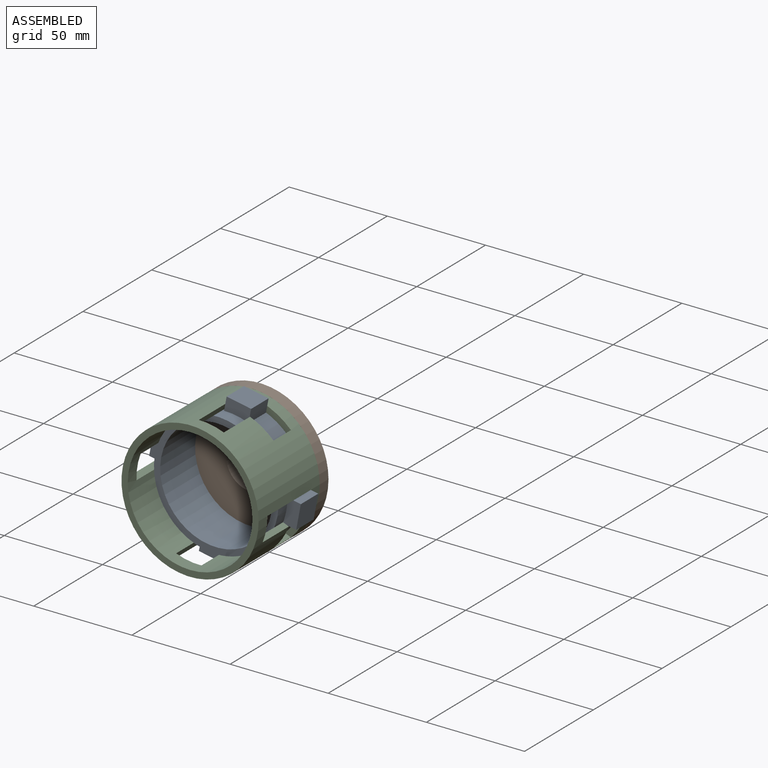
[diagram: assembled view]
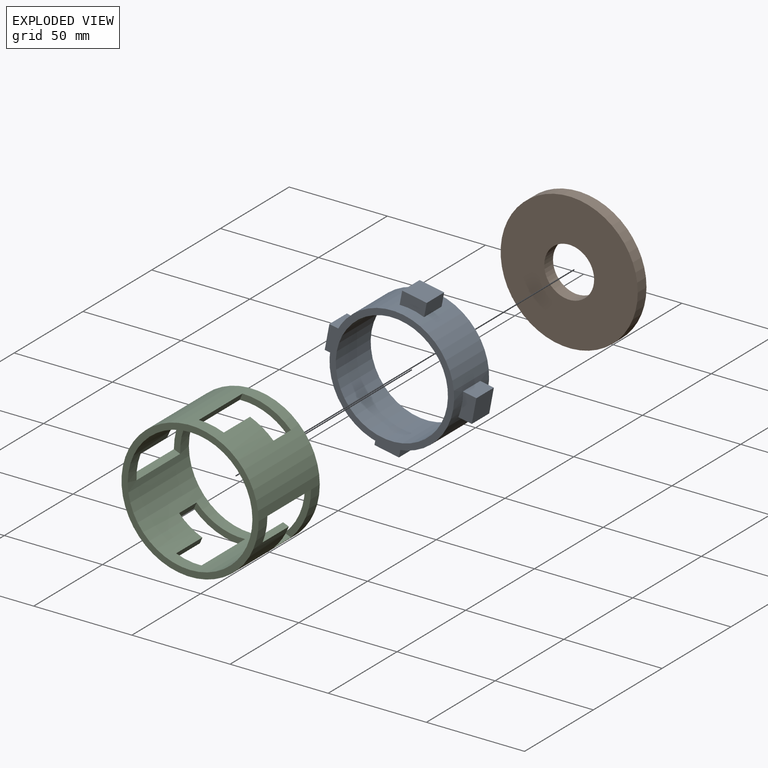
[diagram: exploded view]
GUIDED TOUR — MATED ASSEMBLY (Onshape document f2bd7fd3208cc867d8678e14, AutoMate assembly f2bd7fd3208cc867d8678e14_0d0c3bc2f371387e09c12f44_d8aabe314014a72a8f531f0d_default)

This assembly has 3 components, labeled P0..P2 below (a component is one placed occurrence of a part; the same part can appear more than once), held together by 3 mates. A mate is a constraint between two components; its type names the relative motion it leaves free:
  CYLINDRICAL — leaves both rotation about and translation along the listed axis free,
  PLANAR — leaves sliding in the plane through the listed point (normal = the listed direction) and rotation about that normal free.
Axis/direction vectors are unit vectors and 'through' points are millimeter coordinates, both in the assembly's world frame.

MATES
  1. CYLINDRICAL "Cylindrical 1": P2 <-> P1, axis (0.000, -1.000, 0.000) through (-6.29, 1.32, -3.95) mm
  2. CYLINDRICAL "Cylindrical 2": P0 <-> P2, axis (0.000, -1.000, 0.000) through (-6.29, 20.37, -3.95) mm
  3. PLANAR "Planar 1": P2 <-> P1, direction (0.000, 1.000, 0.000) through (-6.29, 45.77, -3.95) mm

ASSEMBLY ORDER
  1. P2 — the base component [order heuristic]
  2. P0 — core [order heuristic]
  3. P1 [order verified]
Order-tag legend:
  [order verified] — this step's position reverses a verified removal order: the component was checked to insert without passing through the ones already placed.
  [order heuristic] — the first 2 components form the assembly's core: parts whose collision-free extraction could not be verified, listed in mate-graph order.

Of the 3 components, 3 carry the full construction recipe — the FeatureScript program that regenerates the part's solid from scratch; the rest are supplied as boundary geometry only.
Each toured component is shown spotlighted twice — in the assembled view, then in the exploded view, where a leader line traces a displaced component back to its assembled socket (saturated green if recipe-attached, orange if geometry-only; every other component desaturated gray) — followed by its recipe or geometry summary and the mates that hold it.
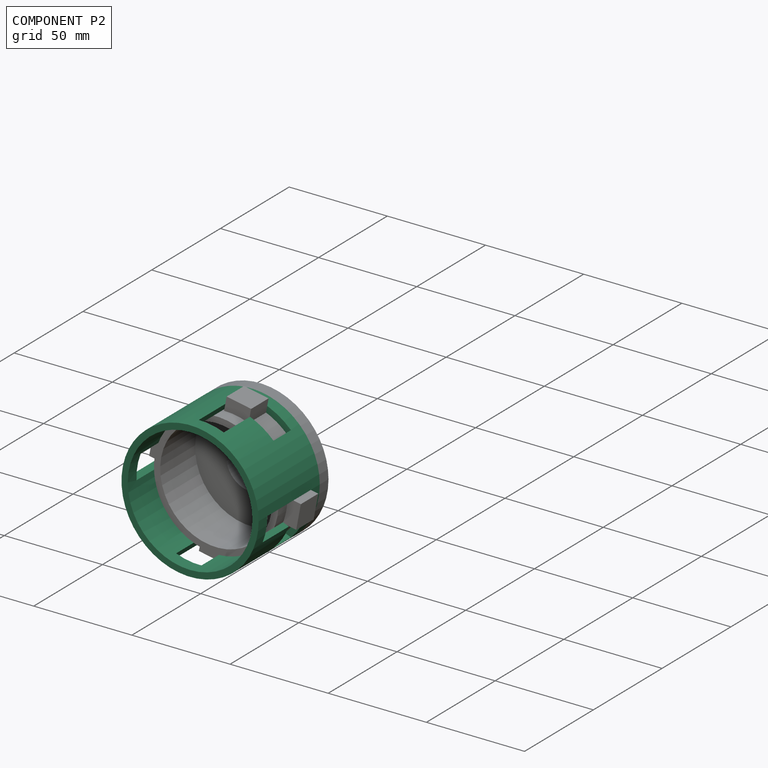
[diagram: component P2 — assembled]
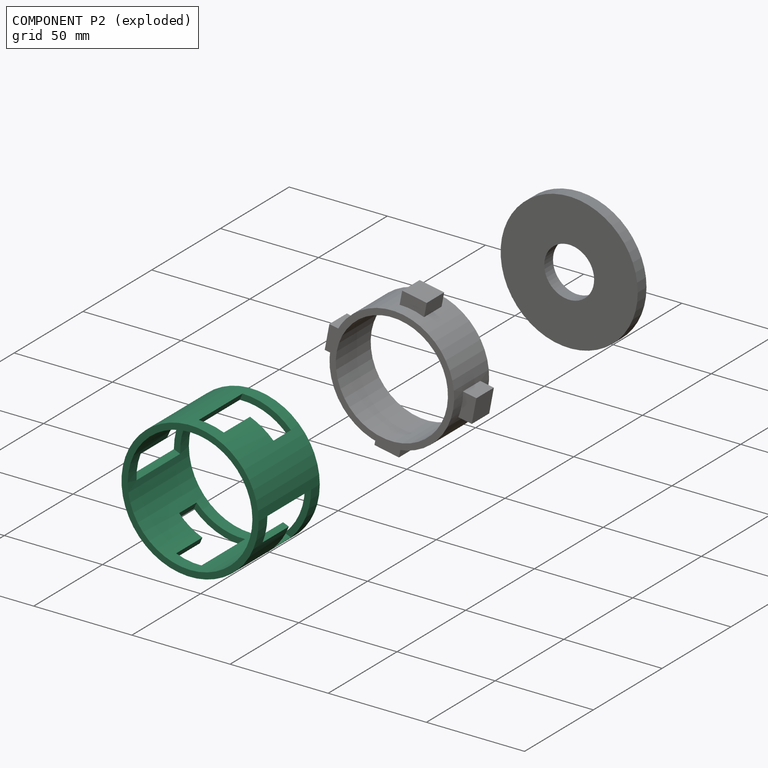
[diagram: component P2 — exploded]
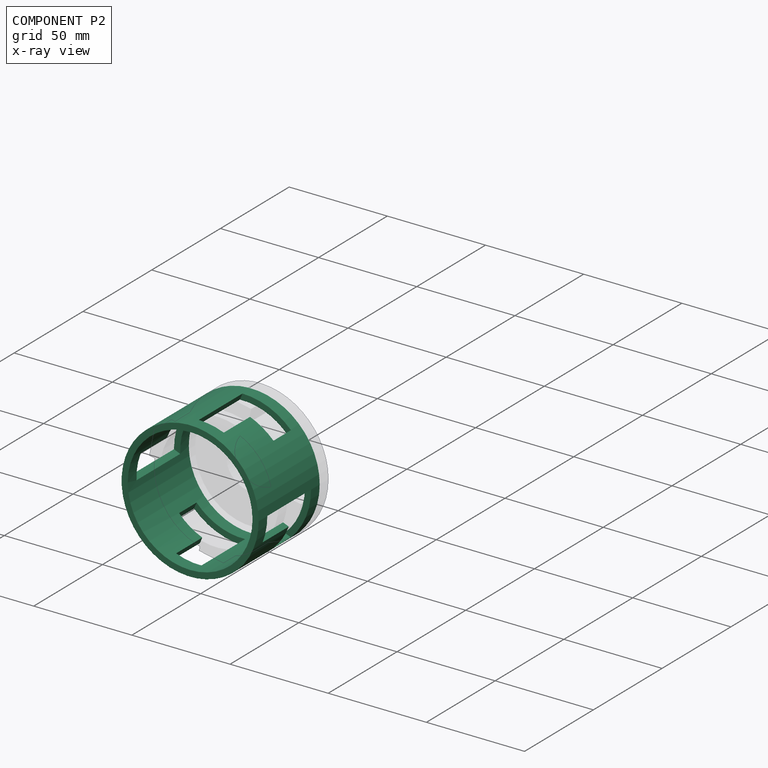
[diagram: component P2 — x-ray view]
COMPONENT P2 — recipe-attached (CADFS 00710134, mesh-verified: the recipe's output STEP matches this component's geometry to below the mesh-comparison resolution (tessellation chordal tolerance ~0.162 mm)).
Held by: CYLINDRICAL mate "Cylindrical 1" to P1; CYLINDRICAL mate "Cylindrical 2" to P0; PLANAR mate "Planar 1" to P1.
Construction recipe (FeatureScript — the CAD program that rebuilds this solid; sketch coordinates are in the units given by the * unit suffixes, e.g. mm):

FeatureScript 1521;
import(path : "onshape/std/geometry.fs", version : "1521.0");
import(path : "onshape/std/common.fs", version : "1521.0");
const mm = millimeter;
const VERTEX = EntityType.VERTEX;
const EDGE = EntityType.EDGE;
const FACE = EntityType.FACE;
const BODY = EntityType.BODY;
function v(x, y){return vector(x, y);}
function OD(order){return orderDisambiguation(order);}
function OSD(set){return originalSetDisambiguation(set);}
function TD(topology){return topologyDisambiguation(topology);}
function TDD(query){return trueDependencyDisambiguation(query);}
function sQuery(a, b, c) {return sketchEntityQuery(a, b, c);}

annotation { "Feature Type Name" : "Feature", "Feature Type Description" : "" }
export const myFeature = defineFeature(function(context is Context, id is Id, definition is map)
    precondition{}
    {
        {
            var Q0;
            Q0=qCreatedBy(makeId("Front.planeOp"),FACE);
            var sketch = newSketch(context, id + "F0", { "sketchPlane" : qUnion([Q0])});
            skCircle(sketch, "E0", {"center": v(0, 0) * mm, "radius": 31.75 * mm});
            skCircle(sketch, "E1", {"center": v(0, 0) * mm, "radius": 34.93 * mm});
            skSolve(sketch);
        }
        {
            var Q0;
            Q0=makeQuery(id+"F0.imprint","IMPRINT",FACE,{"disambiguationData":[TD([[makeQuery(id+"F0.imprint","IMPRINT",EDGE,{"derivedFrom":sQuery(id+"F0.wireOp",EDGE,"E0")}),-1.0]])]});
            extrude(context, id + "F1", {"entities" : qUnion([Q0]), "depth" : 44.45 * mm, "offsetDistance" : 25.4 * mm});
        }
        {
            var Q0;
            Q0=qCreatedBy(makeId("Top.planeOp"),FACE);
            cPlane(context, id + "F2", {"entities" : qUnion([Q0]), "cplaneType" : CPlaneType.OFFSET, "offset" : 38.1 * mm, "width" : 152.4 * mm, "height" : 152.4 * mm});
        }
        {
            var Q0;
            Q0=qCreatedBy(makeId("Front.planeOp"),FACE);
            cPlane(context, id + "F3", {"entities" : qUnion([Q0]), "cplaneType" : CPlaneType.OFFSET, "offset" : 6.35 * mm, "width" : 152.4 * mm, "height" : 152.4 * mm});
        }
        {
            var Q0;
            Q0=qCreatedBy(id+"F3.planeOp",FACE);
            var sketch = newSketch(context, id + "F4", { "sketchPlane" : qUnion([Q0])});
            skLineSegment(sketch, "E2.0", {"start": v(1.22, 37.86) * mm, "end": v(25.91, 27.63) * mm});
            skLineSegment(sketch, "E3.0", {"start": v(-2.43, 29.06) * mm, "end": v(22.27, 18.83) * mm});
            skLineSegment(sketch, "E4", {"start": v(1.22, 37.86) * mm, "end": v(-2.43, 29.06) * mm});
            skLineSegment(sketch, "E5", {"start": v(22.27, 18.83) * mm, "end": v(25.91, 27.63) * mm});
            skLineSegment(sketch, "E6.1.0", {"start": v(-18.83, 22.27) * mm, "end": v(-27.63, 25.91) * mm});
            skLineSegment(sketch, "E6.1.1", {"start": v(-37.86, 1.22) * mm, "end": v(-27.63, 25.91) * mm});
            skLineSegment(sketch, "E6.1.2", {"start": v(-37.86, 1.22) * mm, "end": v(-29.06, -2.43) * mm});
            skLineSegment(sketch, "E6.1.3", {"start": v(-29.06, -2.43) * mm, "end": v(-18.83, 22.27) * mm});
            skLineSegment(sketch, "E6.2.0", {"start": v(-22.27, -18.83) * mm, "end": v(-25.91, -27.63) * mm});
            skLineSegment(sketch, "E6.2.1", {"start": v(-1.22, -37.86) * mm, "end": v(-25.91, -27.63) * mm});
            skLineSegment(sketch, "E6.2.2", {"start": v(-1.22, -37.86) * mm, "end": v(2.43, -29.06) * mm});
            skLineSegment(sketch, "E6.2.3", {"start": v(2.43, -29.06) * mm, "end": v(-22.27, -18.83) * mm});
            skLineSegment(sketch, "E6.3.0", {"start": v(18.83, -22.27) * mm, "end": v(27.63, -25.91) * mm});
            skLineSegment(sketch, "E6.3.1", {"start": v(37.86, -1.22) * mm, "end": v(27.63, -25.91) * mm});
            skLineSegment(sketch, "E6.3.2", {"start": v(37.86, -1.22) * mm, "end": v(29.06, 2.43) * mm});
            skLineSegment(sketch, "E6.3.3", {"start": v(29.06, 2.43) * mm, "end": v(18.83, -22.27) * mm});
            skPoint(sketch, "E6.center", {"position": v(0, 0) * mm});
            skSolve(sketch);
        }
        {
            var Q0;
            Q0=makeQuery(id+"F4.imprint","IMPRINT",FACE,{"disambiguationData":[TD([[makeQuery(id+"F4.imprint","IMPRINT",EDGE,{"derivedFrom":sQuery(id+"F4.wireOp",EDGE,"E6.1.0")}),1.0]])]});
            var Q1;
            Q1=makeQuery(id+"F4.imprint","IMPRINT",FACE,{"disambiguationData":[TD([[makeQuery(id+"F4.imprint","IMPRINT",EDGE,{"derivedFrom":sQuery(id+"F4.wireOp",EDGE,"E2.0")}),-1.0]])]});
            var Q2;
            Q2=makeQuery(id+"F4.imprint","IMPRINT",FACE,{"disambiguationData":[TD([[makeQuery(id+"F4.imprint","IMPRINT",EDGE,{"derivedFrom":sQuery(id+"F4.wireOp",EDGE,"E6.3.0")}),1.0]])]});
            var Q3;
            Q3=makeQuery(id+"F4.imprint","IMPRINT",FACE,{"disambiguationData":[TD([[makeQuery(id+"F4.imprint","IMPRINT",EDGE,{"derivedFrom":sQuery(id+"F4.wireOp",EDGE,"E6.2.0")}),1.0]])]});
            extrude(context, id + "F5", {"entities" : qUnion([Q0, Q1, Q2, Q3]), "operationType" : NewBodyOperationType.REMOVE, "depth" : 12.7 * mm, "offsetDistance" : 25.4 * mm});
        }
        {
            var Q0;
            Q0=qCreatedBy(id+"F3.planeOp",FACE);
            cPlane(context, id + "F6", {"entities" : qUnion([Q0]), "cplaneType" : CPlaneType.OFFSET, "offset" : 12.7 * mm, "width" : 152.4 * mm, "height" : 152.4 * mm});
        }
        {
            var Q0;
            Q0=qCreatedBy(id+"F6.planeOp",FACE);
            var sketch = newSketch(context, id + "F7", { "sketchPlane" : qUnion([Q0])});
            skCircle(sketch, "E7.cCircle", {"center": v(0, 0) * mm, "radius": 34.93 * mm, "construction": true});
            skLineSegment(sketch, "E7.1", {"start": v(24.7, 24.7) * mm, "end": v(34.93, 0) * mm});
            skLineSegment(sketch, "E7.3", {"start": v(24.7, -24.7) * mm, "end": v(0, -34.93) * mm});
            skLineSegment(sketch, "E7.5", {"start": v(-24.7, -24.7) * mm, "end": v(-34.93, 0) * mm});
            skLineSegment(sketch, "E7.7", {"start": v(-24.7, 24.7) * mm, "end": v(0, 34.93) * mm});
            skLineSegment(sketch, "E8.0", {"start": v(-2.43, 29.06) * mm, "end": v(9.3, 24.2) * mm});
            skLineSegment(sketch, "E9.0", {"start": v(1.22, 37.86) * mm, "end": v(12.95, 33) * mm});
            skLineSegment(sketch, "E10", {"start": v(1.22, 37.86) * mm, "end": v(-2.43, 29.06) * mm});
            skLineSegment(sketch, "E11.0", {"start": v(12.95, 33) * mm, "end": v(9.3, 24.2) * mm});
            skLineSegment(sketch, "E12.1.0", {"start": v(-29.06, -2.43) * mm, "end": v(-24.2, 9.3) * mm});
            skLineSegment(sketch, "E12.1.1", {"start": v(-33, 12.95) * mm, "end": v(-24.2, 9.3) * mm});
            skLineSegment(sketch, "E12.1.2", {"start": v(-37.86, 1.22) * mm, "end": v(-29.06, -2.43) * mm});
            skLineSegment(sketch, "E12.1.3", {"start": v(-37.86, 1.22) * mm, "end": v(-33, 12.95) * mm});
            skLineSegment(sketch, "E12.2.0", {"start": v(2.43, -29.06) * mm, "end": v(-9.3, -24.2) * mm});
            skLineSegment(sketch, "E12.2.1", {"start": v(-12.95, -33) * mm, "end": v(-9.3, -24.2) * mm});
            skLineSegment(sketch, "E12.2.2", {"start": v(-1.22, -37.86) * mm, "end": v(2.43, -29.06) * mm});
            skLineSegment(sketch, "E12.2.3", {"start": v(-1.22, -37.86) * mm, "end": v(-12.95, -33) * mm});
            skLineSegment(sketch, "E12.3.0", {"start": v(29.06, 2.43) * mm, "end": v(24.2, -9.3) * mm});
            skLineSegment(sketch, "E12.3.1", {"start": v(33, -12.95) * mm, "end": v(24.2, -9.3) * mm});
            skLineSegment(sketch, "E12.3.2", {"start": v(37.86, -1.22) * mm, "end": v(29.06, 2.43) * mm});
            skLineSegment(sketch, "E12.3.3", {"start": v(37.86, -1.22) * mm, "end": v(33, -12.95) * mm});
            skSolve(sketch);
        }
        {
            var Q0;
            {var subQ2=sQuery(id+"F7.wireOp",EDGE,"E8.0");Q0=makeQuery(id+"F7.imprint","IMPRINT",FACE,{"disambiguationData":[TD([[makeQuery(id+"F7.imprint","IMPRINT",EDGE,{"derivedFrom":subQ2}),1.0]])]});}
            var Q1;
            {var subQ2=sQuery(id+"F7.wireOp",EDGE,"E12.1.0");Q1=makeQuery(id+"F7.imprint","IMPRINT",FACE,{"disambiguationData":[TD([[makeQuery(id+"F7.imprint","IMPRINT",EDGE,{"derivedFrom":subQ2}),1.0]])]});}
            var Q2;
            {var subQ2=sQuery(id+"F7.wireOp",EDGE,"E12.2.0");Q2=makeQuery(id+"F7.imprint","IMPRINT",FACE,{"disambiguationData":[TD([[makeQuery(id+"F7.imprint","IMPRINT",EDGE,{"derivedFrom":subQ2}),1.0]])]});}
            var Q3;
            {var subQ2=sQuery(id+"F7.wireOp",EDGE,"E12.3.0");Q3=makeQuery(id+"F7.imprint","IMPRINT",FACE,{"disambiguationData":[TD([[makeQuery(id+"F7.imprint","IMPRINT",EDGE,{"derivedFrom":subQ2}),1.0]])]});}
            extrude(context, id + "F8", {"entities" : qUnion([Q0, Q1, Q2, Q3]), "operationType" : NewBodyOperationType.REMOVE, "depth" : 19.05 * mm, "offsetDistance" : 25.4 * mm});
        }
    });
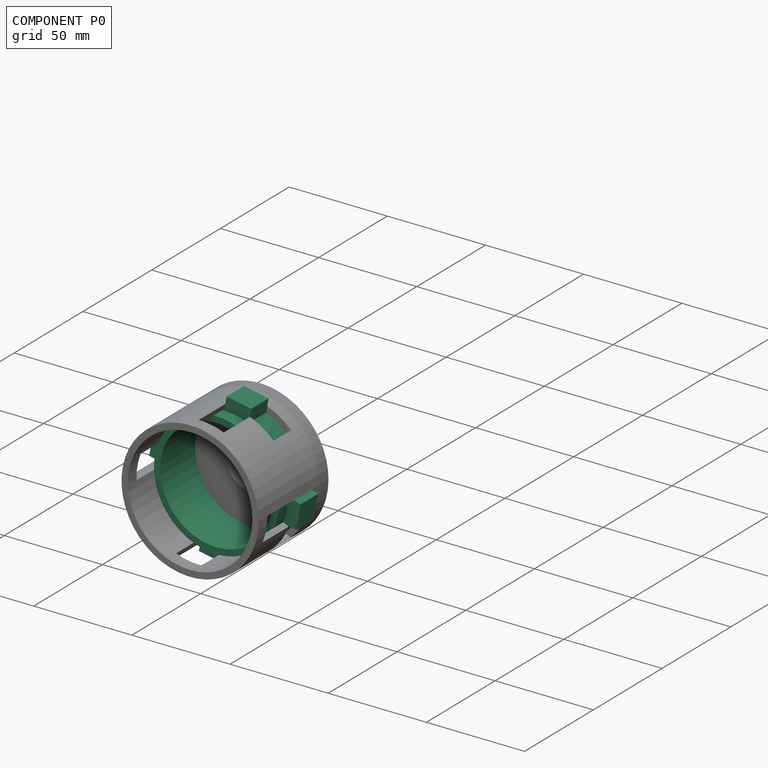
[diagram: component P0 — assembled]
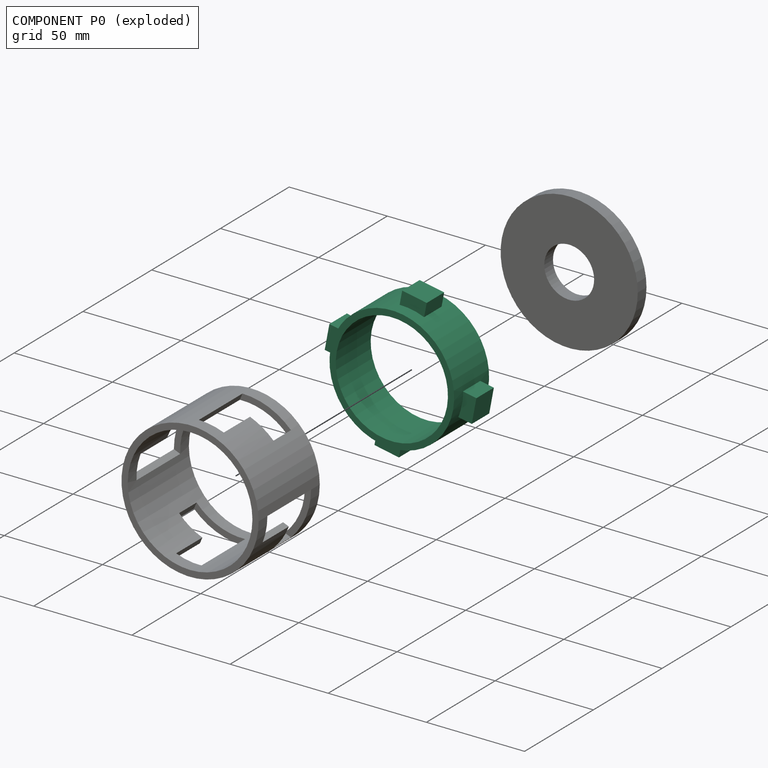
[diagram: component P0 — exploded]
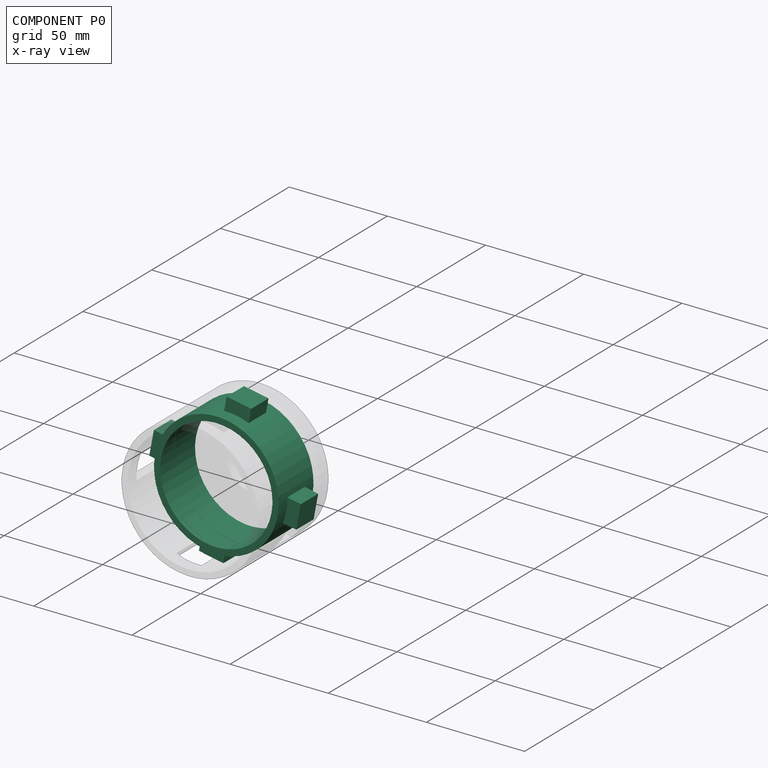
[diagram: component P0 — x-ray view]
COMPONENT P0 — recipe-attached (CADFS 00710136, mesh-verified: the recipe's output STEP matches this component's geometry to below the mesh-comparison resolution (tessellation chordal tolerance ~0.166 mm)).
Held by: CYLINDRICAL mate "Cylindrical 2" to P2.
Construction recipe (FeatureScript — the CAD program that rebuilds this solid; sketch coordinates are in the units given by the * unit suffixes, e.g. mm):

FeatureScript 1521;
import(path : "onshape/std/geometry.fs", version : "1521.0");
import(path : "onshape/std/common.fs", version : "1521.0");
const mm = millimeter;
const VERTEX = EntityType.VERTEX;
const EDGE = EntityType.EDGE;
const FACE = EntityType.FACE;
const BODY = EntityType.BODY;
function v(x, y){return vector(x, y);}
function OD(order){return orderDisambiguation(order);}
function OSD(set){return originalSetDisambiguation(set);}
function TD(topology){return topologyDisambiguation(topology);}
function TDD(query){return trueDependencyDisambiguation(query);}
function sQuery(a, b, c) {return sketchEntityQuery(a, b, c);}

annotation { "Feature Type Name" : "Feature", "Feature Type Description" : "" }
export const myFeature = defineFeature(function(context is Context, id is Id, definition is map)
    precondition{}
    {
        {
            var Q0;
            Q0=qCreatedBy(makeId("Front.planeOp"),FACE);
            var sketch = newSketch(context, id + "F0", { "sketchPlane" : qUnion([Q0])});
            skCircle(sketch, "E0", {"center": v(0, 0) * mm, "radius": 31.75 * mm});
            skCircle(sketch, "E1", {"center": v(0, 0) * mm, "radius": 28.58 * mm});
            skSolve(sketch);
        }
        {
            var Q0;
            Q0=makeQuery(id+"F0.imprint","IMPRINT",FACE,{"disambiguationData":[TD([[makeQuery(id+"F0.imprint","IMPRINT",EDGE,{"derivedFrom":sQuery(id+"F0.wireOp",EDGE,"E0")}),1.0]])]});
            extrude(context, id + "F1", {"entities" : qUnion([Q0]), "depth" : 25.4 * mm, "offsetDistance" : 25.4 * mm});
        }
        {
            var Q0;
            Q0=qCreatedBy(makeId("Front.planeOp"),FACE);
            cPlane(context, id + "F2", {"entities" : qUnion([Q0]), "cplaneType" : CPlaneType.OFFSET, "offset" : 6.35 * mm, "width" : 152.4 * mm, "height" : 152.4 * mm});
        }
        {
            var Q0;
            Q0=qCreatedBy(id+"F2.planeOp",FACE);
            var sketch = newSketch(context, id + "F3", { "sketchPlane" : qUnion([Q0])});
            skLineSegment(sketch, "E2.bottom", {"start": v(6.35, 30.48) * mm, "end": v(-6.35, 30.48) * mm});
            skLineSegment(sketch, "E2.top", {"start": v(6.35, 38.1) * mm, "end": v(-6.35, 38.1) * mm});
            skLineSegment(sketch, "E2.left", {"start": v(6.35, 30.48) * mm, "end": v(6.35, 38.1) * mm});
            skLineSegment(sketch, "E2.right", {"start": v(-6.35, 30.48) * mm, "end": v(-6.35, 38.1) * mm});
            skLineSegment(sketch, "E3.1.0", {"start": v(-30.48, -6.35) * mm, "end": v(-38.1, -6.35) * mm});
            skLineSegment(sketch, "E3.1.1", {"start": v(-30.48, 6.35) * mm, "end": v(-38.1, 6.35) * mm});
            skLineSegment(sketch, "E3.1.2", {"start": v(-38.1, 6.35) * mm, "end": v(-38.1, -6.35) * mm});
            skLineSegment(sketch, "E3.1.3", {"start": v(-30.48, 6.35) * mm, "end": v(-30.48, -6.35) * mm});
            skLineSegment(sketch, "E3.2.0", {"start": v(6.35, -30.48) * mm, "end": v(6.35, -38.1) * mm});
            skLineSegment(sketch, "E3.2.1", {"start": v(-6.35, -30.48) * mm, "end": v(-6.35, -38.1) * mm});
            skLineSegment(sketch, "E3.2.2", {"start": v(-6.35, -38.1) * mm, "end": v(6.35, -38.1) * mm});
            skLineSegment(sketch, "E3.2.3", {"start": v(-6.35, -30.48) * mm, "end": v(6.35, -30.48) * mm});
            skLineSegment(sketch, "E3.3.0", {"start": v(30.48, 6.35) * mm, "end": v(38.1, 6.35) * mm});
            skLineSegment(sketch, "E3.3.1", {"start": v(30.48, -6.35) * mm, "end": v(38.1, -6.35) * mm});
            skLineSegment(sketch, "E3.3.2", {"start": v(38.1, -6.35) * mm, "end": v(38.1, 6.35) * mm});
            skLineSegment(sketch, "E3.3.3", {"start": v(30.48, -6.35) * mm, "end": v(30.48, 6.35) * mm});
            skPoint(sketch, "E3.center", {"position": v(0, 0) * mm});
            skSolve(sketch);
        }
        {
            var Q0;
            Q0=makeQuery(id+"F3.imprint","IMPRINT",FACE,{"disambiguationData":[TD([[makeQuery(id+"F3.imprint","IMPRINT",EDGE,{"derivedFrom":sQuery(id+"F3.wireOp",EDGE,"E2.bottom")}),-1.0]])]});
            var Q1;
            Q1=makeQuery(id+"F3.imprint","IMPRINT",FACE,{"disambiguationData":[TD([[makeQuery(id+"F3.imprint","IMPRINT",EDGE,{"derivedFrom":sQuery(id+"F3.wireOp",EDGE,"E3.3.0")}),-1.0]])]});
            var Q2;
            Q2=makeQuery(id+"F3.imprint","IMPRINT",FACE,{"disambiguationData":[TD([[makeQuery(id+"F3.imprint","IMPRINT",EDGE,{"derivedFrom":sQuery(id+"F3.wireOp",EDGE,"E3.1.0")}),-1.0]])]});
            var Q3;
            Q3=makeQuery(id+"F3.imprint","IMPRINT",FACE,{"disambiguationData":[TD([[makeQuery(id+"F3.imprint","IMPRINT",EDGE,{"derivedFrom":sQuery(id+"F3.wireOp",EDGE,"E3.2.0")}),-1.0]])]});
            extrude(context, id + "F4", {"entities" : qUnion([Q0, Q1, Q2, Q3]), "operationType" : NewBodyOperationType.ADD, "depth" : 12.7 * mm, "offsetDistance" : 25.4 * mm});
        }
    });
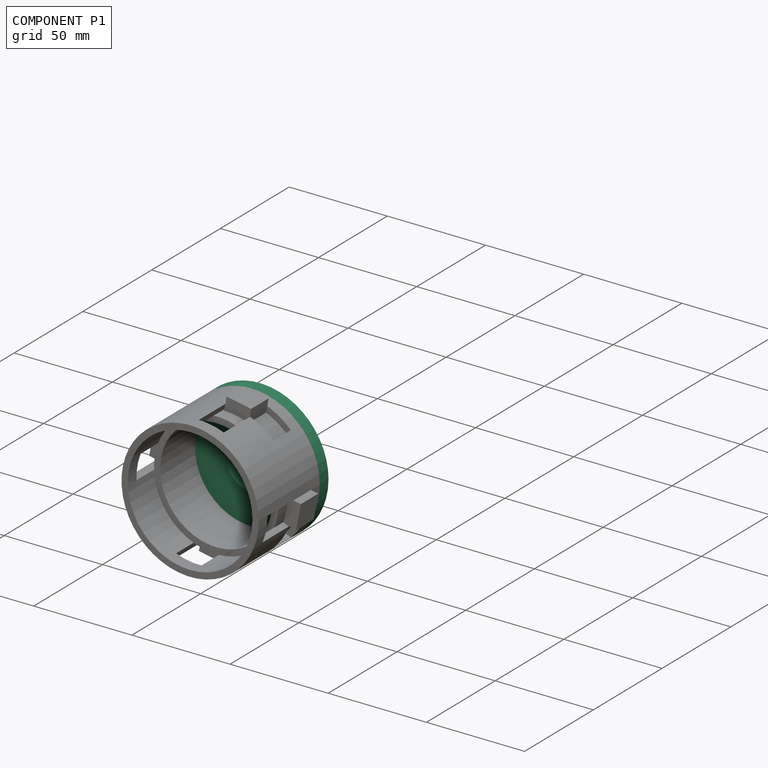
[diagram: component P1 — assembled]
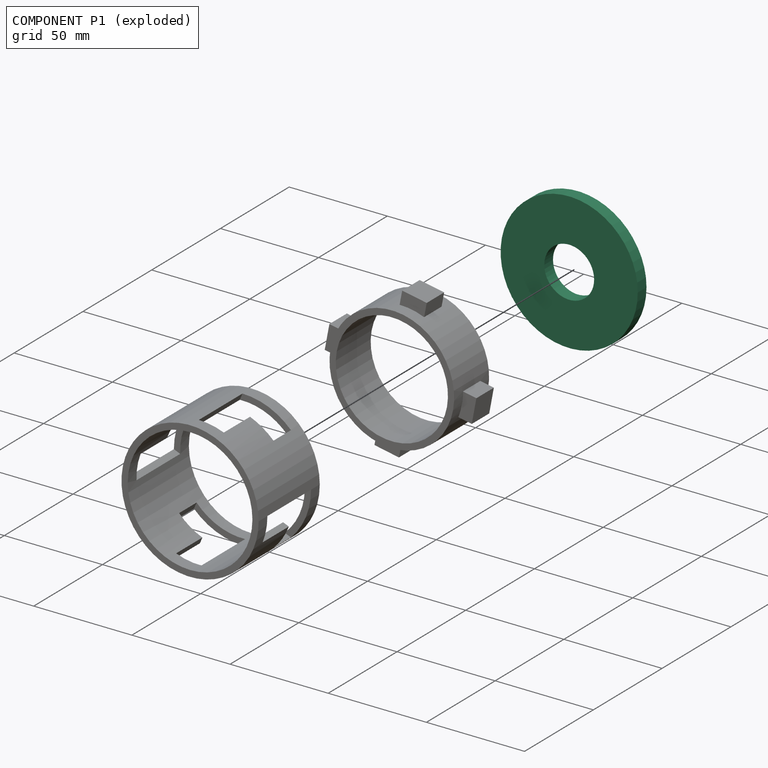
[diagram: component P1 — exploded]
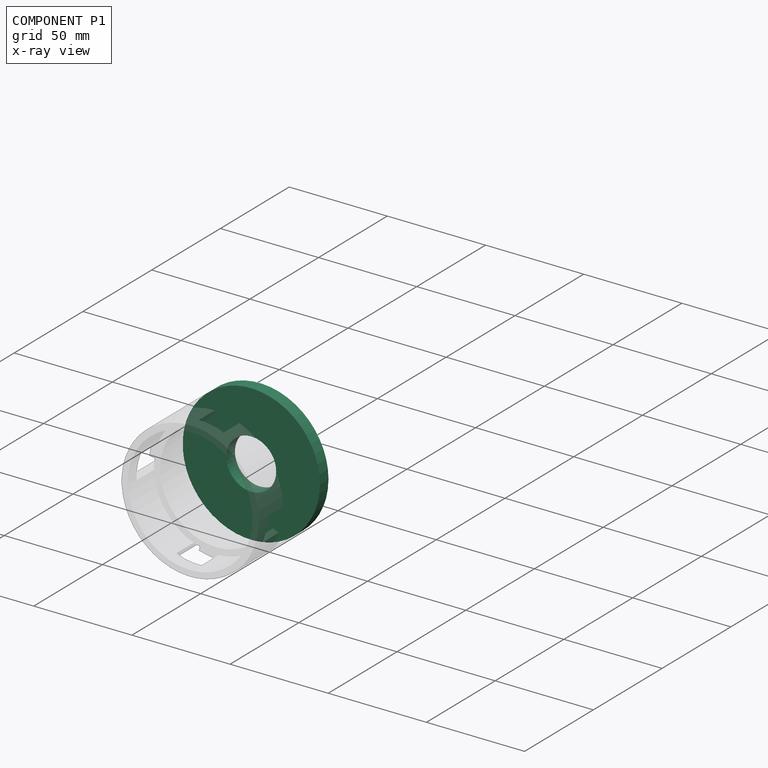
[diagram: component P1 — x-ray view]
COMPONENT P1 — recipe-attached (CADFS 00710135, mesh-verified: the recipe's output STEP matches this component's geometry to below the mesh-comparison resolution (tessellation chordal tolerance ~0.148 mm)).
Held by: CYLINDRICAL mate "Cylindrical 1" to P2; PLANAR mate "Planar 1" to P2.
Construction recipe (FeatureScript — the CAD program that rebuilds this solid; sketch coordinates are in the units given by the * unit suffixes, e.g. mm):

FeatureScript 1521;
import(path : "onshape/std/geometry.fs", version : "1521.0");
import(path : "onshape/std/common.fs", version : "1521.0");
const mm = millimeter;
const VERTEX = EntityType.VERTEX;
const EDGE = EntityType.EDGE;
const FACE = EntityType.FACE;
const BODY = EntityType.BODY;
function v(x, y){return vector(x, y);}
function OD(order){return orderDisambiguation(order);}
function OSD(set){return originalSetDisambiguation(set);}
function TD(topology){return topologyDisambiguation(topology);}
function TDD(query){return trueDependencyDisambiguation(query);}
function sQuery(a, b, c) {return sketchEntityQuery(a, b, c);}

annotation { "Feature Type Name" : "Feature", "Feature Type Description" : "" }
export const myFeature = defineFeature(function(context is Context, id is Id, definition is map)
    precondition{}
    {
        {
            var Q0;
            Q0=qCreatedBy(makeId("Front.planeOp"),FACE);
            var sketch = newSketch(context, id + "F0", { "sketchPlane" : qUnion([Q0])});
            skCircle(sketch, "E0", {"center": v(0, 0) * mm, "radius": 34.93 * mm});
            skCircle(sketch, "E1", {"center": v(0, 0) * mm, "radius": 12.7 * mm});
            skSolve(sketch);
        }
        {
            var Q0;
            Q0=makeQuery(id+"F0.imprint","IMPRINT",FACE,{"disambiguationData":[TD([[makeQuery(id+"F0.imprint","IMPRINT",EDGE,{"derivedFrom":sQuery(id+"F0.wireOp",EDGE,"E0")}),1.0]])]});
            extrude(context, id + "F1", {"entities" : qUnion([Q0]), "depth" : 6.35 * mm, "offsetDistance" : 25.4 * mm});
        }
    });
PROVENANCE & LICENSES
Assembly (occurrences, transforms, mates, per-part STEP geometry): AutoMate dataset, Zenodo record 7776208, CC0.
Construction recipes: CADFS (HuggingFace VladPyatov/CADFS, CC-BY-4.0, layered over the ABC dataset), FeatureScript reconstruction programs keyed by ABC model id.
Join: ABC meta listings map ABC model id -> Onshape documentId; within a shared document, parts are matched by geometric signature (bounding-box dims + volume at 0.1% relative tolerance, exact B-rep face/solid counts).
Verification: 3 of this assembly's 3 components carry a recipe attachment, and every attachment is mesh-verified: the CADFS STEP and the AutoMate member STEP were compared as meshes in their shared local frame (symmetric sampled-point-to-mesh distance); worst across the 3 attachments: below the mesh-comparison resolution (tessellation chordal tolerance ~0.166 mm) on a 111 mm part.
Renders: orthographic iso camera (az 35 / el 25); the floor grid conveys scale (grid pitch printed in each image; no ruler). In the exploded view each component is displaced by its stored offset vector: the offsets alone carry the explosion direction (mate normal/axis signs are not orientation cues and do not encode it), and separation distances are assigned per mate-chain, not proportionally to assembly-order depth.
